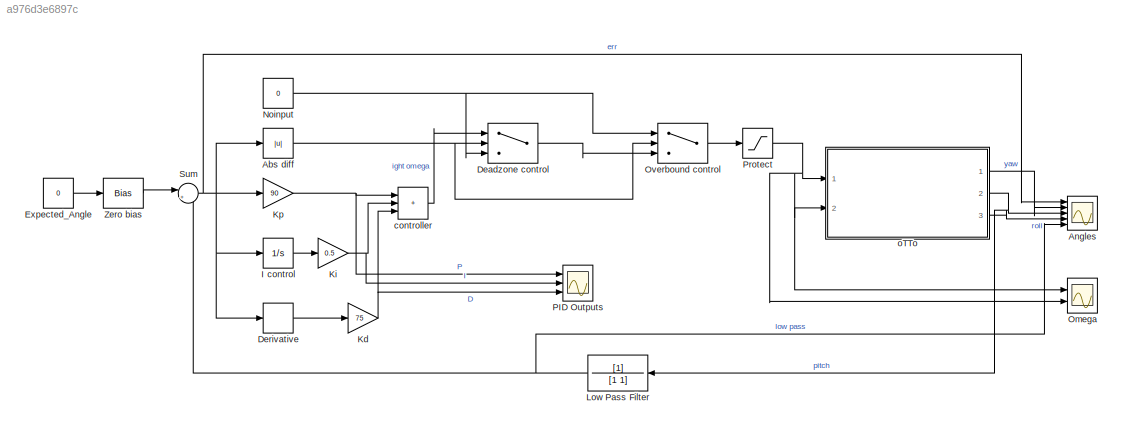
MODEL slx_a976d3e6897c
KIND model
CONFIG AbsTol = auto
CONFIG EnableMultiTasking = off
CONFIG FixedStep = auto
CONFIG MaxStep = auto
CONFIG MinStep = auto
CONFIG RelTol = 1e-3
CONFIG SampleTimeConstraint = Unconstrained
CONFIG SolverName = FixedStepAuto
CONFIG StartTime = 0.0
CONFIG StopTime = inf
BLOCK [Abs] Abs diff
  SaturateOnIntegerOverflow = off
BLOCK [Scope] Angles
  Floating = off
  NumInputPorts = 5
  Ports = [5]
  ScopeSpecificationString = Simulink.scopes.TimeScopeBlockCfg('CurrentConfiguration', extmgr.ConfigurationSet(extmgr.Configuration('Core','General UI',true),extmgr.Configuration('Core','Source UI',true),extmgr.Configuration('Sources','WiredSimulink',true),extmgr.Configuration('Visuals','Time Domain',true,'SerializedDisplays',{struct('MinYLimReal','-39.19221','MaxYLimReal','204.35944','YLabelReal','','MinYLimMag','0.00000','M...<+1836ch>
BLOCK [Switch] Deadzone control
  Criteria = u2 > Threshold
  InputSameDT = off
  SaturateOnIntegerOverflow = off
  Threshold = 0.05
BLOCK [Derivative] Derivative
BLOCK [Constant] Expected_Angle
  Value = 0
BLOCK [Integrator] I control
  Ports = [1, 1]
BLOCK [Gain] Kd
  Gain = 75
BLOCK [Gain] Ki
  Gain = 0.5
BLOCK [Gain] Kp
  Gain = 90
BLOCK [TransferFcn] Low Pass Filter
  Denominator = [1 1]
BLOCK [Constant] Noinput
  Value = 0
BLOCK [Scope] Omega
  Floating = off
  NumInputPorts = 2
  Ports = [2]
  ScopeSpecificationString = Simulink.scopes.TimeScopeBlockCfg('CurrentConfiguration', extmgr.ConfigurationSet(extmgr.Configuration('Core','General UI',true),extmgr.Configuration('Core','Source UI',true),extmgr.Configuration('Sources','WiredSimulink',true,'DataLoggingVariableName','ScopeData1'),extmgr.Configuration('Visuals','Time Domain',true,'SerializedDisplays',{struct('MinYLimReal','-2000','MaxYLimReal','2000','YLabelReal...<+1534ch>
BLOCK [Switch] Overbound control
  Criteria = u2 > Threshold
  InputSameDT = off
  SaturateOnIntegerOverflow = off
  Threshold = 12
BLOCK [Scope] PID Outputs
  Floating = off
  NumInputPorts = 3
  Ports = [3]
  ScopeSpecificationString = Simulink.scopes.TimeScopeBlockCfg('CurrentConfiguration', extmgr.ConfigurationSet(extmgr.Configuration('Core','General UI',true),extmgr.Configuration('Core','Source UI',true),extmgr.Configuration('Sources','WiredSimulink',true,'DataLoggingVariableName','ScopeData1'),extmgr.Configuration('Visuals','Time Domain',true,'SerializedDisplays',{struct('MinYLimReal','-1000','MaxYLimReal','1000','YLabelReal...<+1548ch>
BLOCK [Saturate] Protect
  LowerLimit = -1200
  UpperLimit = 1200
BLOCK [Sum] Sum
  Inputs = |+-
  Ports = [2, 1]
BLOCK [Bias] Zero bias
  SaturateOnIntegerOverflow = off
BLOCK [Sum] controller
  IconShape = rectangular
  Inputs = +++
  Ports = [3, 1]
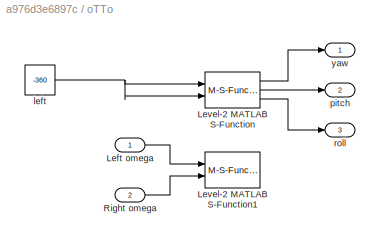
BLOCK [SubSystem] oTTo
  Ports = [2, 3]
  RequestExecContextInheritance = off
BLOCK [Inport] oTTo/Left omega
BLOCK [M-S-Function] oTTo/Level-2 MATLAB S-Function
  FunctionName = oTTo_recv
  Parameters = "COM4", 115200,uart
  Ports = [2, 3]
BLOCK [M-S-Function] oTTo/Level-2 MATLAB S-Function1
  FunctionName = oTTo_send
  Parameters = "COM4", 115200,uart
  Ports = [2]
BLOCK [Inport] oTTo/Right omega
  Port = 2
BLOCK [Constant] oTTo/left
  Value = -360
BLOCK [Outport] oTTo/pitch
  Port = 2
BLOCK [Outport] oTTo/roll
  Port = 3
BLOCK [Outport] oTTo/yaw
NET Abs diff:1 -> Deadzone control:2, Overbound control:2
LINE Deadzone control:1 -> Overbound control:3
LINE Derivative:1 -> Kd:1
LINE Expected_Angle:1 -> Zero bias:1
LINE I control:1 -> Ki:1
NET Kd:1 -> PID Outputs:3, controller:3
NET Ki:1 -> PID Outputs:2, controller:2
NET Kp:1 -> PID Outputs:1, controller:1
NET Low Pass Filter:1 -> Angles:5, Sum:2
NET Noinput:1 -> Deadzone control:3, Overbound control:1
LINE Overbound control:1 -> Protect:1
NET Protect:1 -> Omega:1, Omega:2, oTTo:1, oTTo:2
NET Sum:1 -> Abs diff:1, Angles:1, Derivative:1, I control:1, Kp:1
LINE Zero bias:1 -> Sum:1
LINE controller:1 -> Deadzone control:1
LINE oTTo/Left omega:1 -> oTTo/Level-2 MATLAB S-Function1:1
LINE oTTo/Level-2 MATLAB S-Function:1 -> oTTo/yaw:1
LINE oTTo/Level-2 MATLAB S-Function:2 -> oTTo/pitch:1
LINE oTTo/Level-2 MATLAB S-Function:3 -> oTTo/roll:1
LINE oTTo/Right omega:1 -> oTTo/Level-2 MATLAB S-Function1:2
NET oTTo/left:1 -> oTTo/Level-2 MATLAB S-Function:1, oTTo/Level-2 MATLAB S-Function:2
LINE oTTo:1 -> Angles:2
NET oTTo:2 -> Angles:3, Low Pass Filter:1
LINE oTTo:3 -> Angles:4
note: NET lines group one-source signal fan-out (src -> all destinations, sorted); 1:1 wires keep LINE
